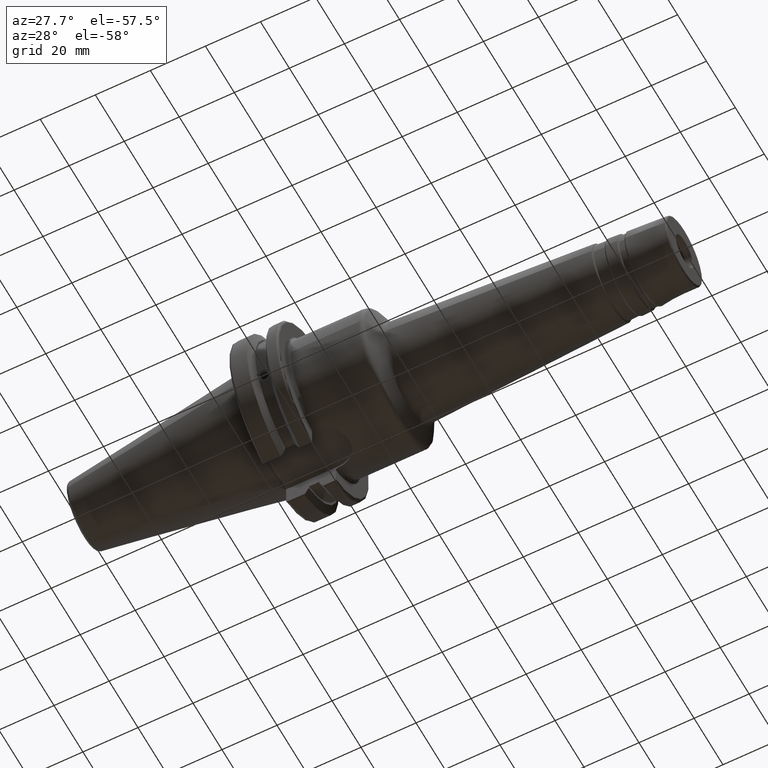
[diagram: clean part render]
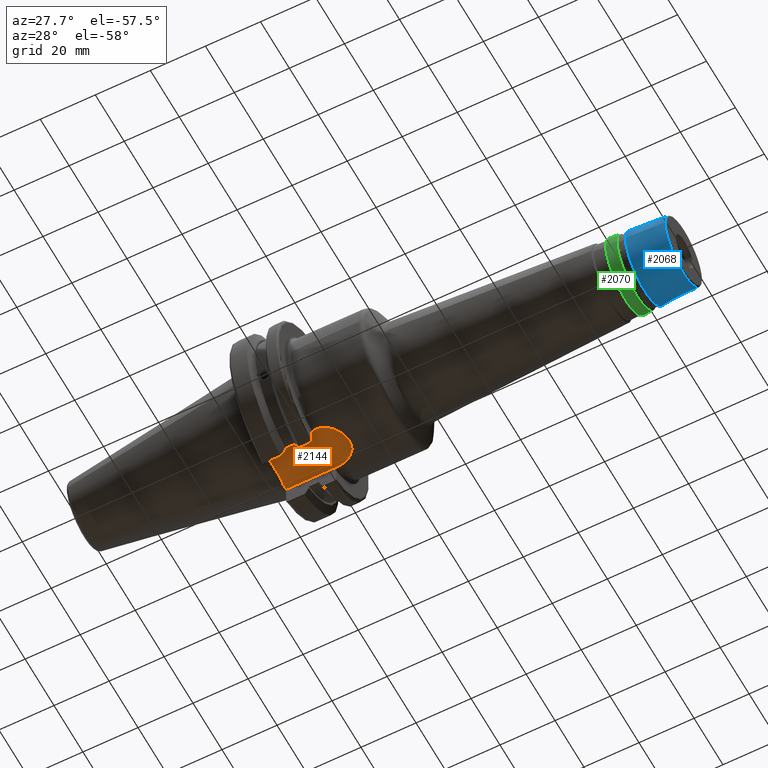
[diagram: same view with three faces highlighted in distinct colors, each labeled with its STEP entity id]
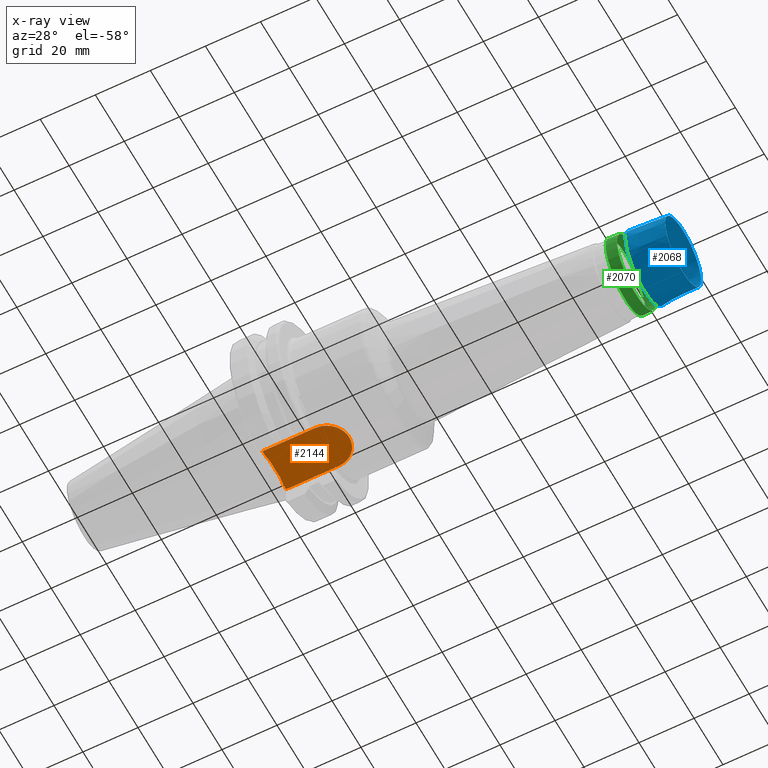
[diagram: x-ray of the same camera — body ghosted, the three highlighted faces saturated]
A machine part, auxiliary view with three faces highlighted in distinct colors.
The next image is the same camera in x-ray (body ghosted, the three faces saturated) — at least one of them is partly hidden behind the body in this view.
Their STEP definitions:

[orange] entity #2144 — the highlighted planar face has unit normal (0, 0, 1).
#31=(
BOUNDED_CURVE()
B_SPLINE_CURVE(2,(#4190,#4191,#4192),.UNSPECIFIED.,.F.,.F.)
B_SPLINE_CURVE_WITH_KNOTS((3,3),(0.,0.339841691449478),.UNSPECIFIED.)
CURVE()
GEOMETRIC_REPRESENTATION_ITEM()
RATIONAL_B_SPLINE_CURVE((1.,1.00266518417082,1.))
REPRESENTATION_ITEM('')
);
#32=(
BOUNDED_CURVE()
B_SPLINE_CURVE(2,(#4195,#4196,#4197),.UNSPECIFIED.,.F.,.F.)
B_SPLINE_CURVE_WITH_KNOTS((3,3),(0.,0.339841691449478),.UNSPECIFIED.)
CURVE()
GEOMETRIC_REPRESENTATION_ITEM()
RATIONAL_B_SPLINE_CURVE((1.,1.00266518417082,1.))
REPRESENTATION_ITEM('')
);
#159=PLANE('',#2443);
#237=LINE('',#4054,#330);
#240=LINE('',#4083,#333);
#241=LINE('',#4086,#334);
#250=LINE('',#4160,#343);
#255=LINE('',#4194,#348);
#330=VECTOR('',#2996,10.);
#333=VECTOR('',#3009,10.);
#334=VECTOR('',#3012,10.);
#343=VECTOR('',#3067,10.);
#348=VECTOR('',#3094,10.);
#463=FACE_OUTER_BOUND('',#581,.T.);
#581=EDGE_LOOP('',(#1935,#1936,#1937,#1938,#1939,#1940,#1941,#1942));
#686=CIRCLE('',#2292,8.19);
#855=VERTEX_POINT('',#3424);
#856=VERTEX_POINT('',#3426);
#978=VERTEX_POINT('',#4052);
#982=VERTEX_POINT('',#4080);
#983=VERTEX_POINT('',#4082);
#984=VERTEX_POINT('',#4084);
#1006=VERTEX_POINT('',#4189);
#1007=VERTEX_POINT('',#4193);
#1121=EDGE_CURVE('',#856,#855,#686,.T.);
#1285=EDGE_CURVE('',#855,#978,#237,.T.);
#1293=EDGE_CURVE('',#982,#983,#240,.T.);
#1295=EDGE_CURVE('',#984,#978,#241,.T.);
#1320=EDGE_CURVE('',#856,#982,#250,.T.);
#1332=EDGE_CURVE('',#1006,#984,#31,.T.);
#1333=EDGE_CURVE('',#1007,#1006,#255,.T.);
#1334=EDGE_CURVE('',#983,#1007,#32,.T.);
#1935=ORIENTED_EDGE('',*,*,#1285,.T.);
#1936=ORIENTED_EDGE('',*,*,#1295,.F.);
#1937=ORIENTED_EDGE('',*,*,#1332,.F.);
#1938=ORIENTED_EDGE('',*,*,#1333,.F.);
#1939=ORIENTED_EDGE('',*,*,#1334,.F.);
#1940=ORIENTED_EDGE('',*,*,#1293,.F.);
#1941=ORIENTED_EDGE('',*,*,#1320,.F.);
#1942=ORIENTED_EDGE('',*,*,#1121,.T.);
#2144=ADVANCED_FACE('',(#463),#159,.F.);
#2292=AXIS2_PLACEMENT_3D('',#3427,#2717,#2718);
#2443=AXIS2_PLACEMENT_3D('',#4188,#3092,#3093);
#2717=DIRECTION('center_axis',(0.,0.,-1.));
#2718=DIRECTION('ref_axis',(5.42233467460393E-16,1.,0.));
#2996=DIRECTION('',(-1.,0.,0.));
#3009=DIRECTION('',(0.,-1.,0.));
#3012=DIRECTION('',(0.,-1.,0.));
#3067=DIRECTION('',(-1.,-1.16558847729675E-16,0.));
#3092=DIRECTION('center_axis',(0.,0.,1.));
#3093=DIRECTION('ref_axis',(1.,0.,0.));
#3094=DIRECTION('',(0.,-1.,0.));
#3424=CARTESIAN_POINT('',(20.05,-8.19,-22.6));
#3426=CARTESIAN_POINT('',(20.05,8.19,-22.6));
#3427=CARTESIAN_POINT('Origin',(20.05,0.,-22.6));
#4052=CARTESIAN_POINT('',(1.,-8.19,-22.6));
#4054=CARTESIAN_POINT('',(20.05,-8.19,-22.6));
#4080=CARTESIAN_POINT('',(0.999999999999998,8.19,-22.6));
#4082=CARTESIAN_POINT('',(0.999999999999997,6.4412731660752,-22.6));
#4083=CARTESIAN_POINT('',(1.,15.875,-22.6));
#4084=CARTESIAN_POINT('',(1.,-6.44127316607517,-22.6));
#4086=CARTESIAN_POINT('',(1.,15.875,-22.6));
#4160=CARTESIAN_POINT('',(20.05,8.19,-22.6));
#4188=CARTESIAN_POINT('Origin',(14.62,-5.55111512312578E-16,-22.6));
#4189=CARTESIAN_POINT('',(1.4,-3.06715581894774,-22.6));
#4190=CARTESIAN_POINT('Ctrl Pts',(1.4,-3.06715581894779,-22.6));
#4191=CARTESIAN_POINT('Ctrl Pts',(1.27097107950098,-4.72897372977579,-22.6));
#4192=CARTESIAN_POINT('Ctrl Pts',(0.999999999999999,-6.44127316607519,-22.6));
#4193=CARTESIAN_POINT('',(1.4,3.06715581894774,-22.6));
#4194=CARTESIAN_POINT('',(1.4,11.4035898384862,-22.6));
#4195=CARTESIAN_POINT('Ctrl Pts',(0.999999999999999,6.44127316607519,-22.6));
#4196=CARTESIAN_POINT('Ctrl Pts',(1.27097107950098,4.72897372977579,-22.6));
#4197=CARTESIAN_POINT('Ctrl Pts',(1.4,3.06715581894779,-22.6));

[blue] entity #2068 — the highlighted conical surface has half-angle 3 deg.
#173=LINE('',#3282,#266);
#266=VECTOR('',#2606,12.8848185972057);
#359=CONICAL_SURFACE('',#2238,12.8848185972057,0.05235987755983);
#387=FACE_OUTER_BOUND('',#493,.T.);
#493=EDGE_LOOP('',(#1447,#1448,#1449,#1450,#1451,#1452,#1453,#1454));
#643=CIRCLE('',#2234,13.2575507230413);
#644=CIRCLE('',#2235,13.2575507230413);
#646=CIRCLE('',#2237,13.2575507230413);
#647=CIRCLE('',#2239,12.5248324840198);
#648=CIRCLE('',#2240,12.5248324840198);
#649=CIRCLE('',#2241,12.5248324840198);
#814=VERTEX_POINT('',#3269);
#815=VERTEX_POINT('',#3270);
#816=VERTEX_POINT('',#3272);
#817=VERTEX_POINT('',#3277);
#818=VERTEX_POINT('',#3278);
#819=VERTEX_POINT('',#3280);
#1065=EDGE_CURVE('',#814,#815,#643,.T.);
#1066=EDGE_CURVE('',#815,#816,#644,.T.);
#1068=EDGE_CURVE('',#816,#814,#646,.T.);
#1069=EDGE_CURVE('',#817,#818,#647,.T.);
#1070=EDGE_CURVE('',#819,#817,#648,.T.);
#1071=EDGE_CURVE('',#819,#815,#173,.T.);
#1072=EDGE_CURVE('',#818,#819,#649,.T.);
#1447=ORIENTED_EDGE('',*,*,#1069,.F.);
#1448=ORIENTED_EDGE('',*,*,#1070,.F.);
#1449=ORIENTED_EDGE('',*,*,#1071,.T.);
#1450=ORIENTED_EDGE('',*,*,#1065,.F.);
#1451=ORIENTED_EDGE('',*,*,#1068,.F.);
#1452=ORIENTED_EDGE('',*,*,#1066,.F.);
#1453=ORIENTED_EDGE('',*,*,#1071,.F.);
#1454=ORIENTED_EDGE('',*,*,#1072,.F.);
#2068=ADVANCED_FACE('',(#387),#359,.T.);
#2234=AXIS2_PLACEMENT_3D('',#3271,#2592,#2593);
#2235=AXIS2_PLACEMENT_3D('',#3273,#2594,#2595);
#2237=AXIS2_PLACEMENT_3D('',#3275,#2598,#2599);
#2238=AXIS2_PLACEMENT_3D('',#3276,#2600,#2601);
#2239=AXIS2_PLACEMENT_3D('',#3279,#2602,#2603);
#2240=AXIS2_PLACEMENT_3D('',#3281,#2604,#2605);
#2241=AXIS2_PLACEMENT_3D('',#3283,#2607,#2608);
#2592=DIRECTION('center_axis',(-1.,0.,0.));
#2593=DIRECTION('ref_axis',(0.,-1.,3.06161699786838E-17));
#2594=DIRECTION('center_axis',(-1.,0.,0.));
#2595=DIRECTION('ref_axis',(0.,-1.,3.06161699786838E-17));
#2598=DIRECTION('center_axis',(-1.,0.,0.));
#2599=DIRECTION('ref_axis',(0.,-1.,3.06161699786838E-17));
#2600=DIRECTION('center_axis',(-1.,0.,0.));
#2601=DIRECTION('ref_axis',(0.,1.,0.));
#2602=DIRECTION('center_axis',(1.,0.,0.));
#2603=DIRECTION('ref_axis',(0.,-1.,3.06161699786839E-17));
#2604=DIRECTION('center_axis',(1.,0.,0.));
#2605=DIRECTION('ref_axis',(0.,-1.,3.06161699786839E-17));
#2606=DIRECTION('',(-0.998629534754574,-0.052335956242944,-6.40930612932372E-18));
#2607=DIRECTION('center_axis',(1.,0.,0.));
#2608=DIRECTION('ref_axis',(0.,-1.,3.06161699786839E-17));
#3269=CARTESIAN_POINT('',(135.545071105762,13.2575507230413,-4.05895426437655E-15));
#3270=CARTESIAN_POINT('',(135.545071105762,-13.2575507230413,-1.62358170575062E-15));
#3271=CARTESIAN_POINT('Origin',(135.545071105762,0.,-2.02947713218828E-15));
#3272=CARTESIAN_POINT('',(135.545071105762,-1.62358170575062E-15,13.2575507230413));
#3273=CARTESIAN_POINT('Origin',(135.545071105762,0.,-2.02947713218828E-15));
#3275=CARTESIAN_POINT('Origin',(135.545071105762,0.,-2.02947713218828E-15));
#3276=CARTESIAN_POINT('Origin',(142.657223746739,0.,0.));
#3277=CARTESIAN_POINT('',(149.526167978121,12.5248324840198,-7.66924800570586E-16));
#3278=CARTESIAN_POINT('',(149.526167978121,-1.53384960114117E-15,12.5248324840198));
#3279=CARTESIAN_POINT('Origin',(149.526167978121,0.,-1.91731200142646E-15));
#3280=CARTESIAN_POINT('',(149.526167978121,-12.5248324840198,-1.53384960114117E-15));
#3281=CARTESIAN_POINT('Origin',(149.526167978121,0.,-1.91731200142646E-15));
#3282=CARTESIAN_POINT('',(142.657223746739,-12.8848185972057,-1.57793518526622E-15));
#3283=CARTESIAN_POINT('Origin',(149.526167978121,0.,-1.91731200142646E-15));

[green] entity #2070 — the highlighted conical surface has half-angle 3 deg.
#174=LINE('',#3294,#267);
#267=VECTOR('',#2621,13.5202570867172);
#360=CONICAL_SURFACE('',#2247,13.5202570867172,0.0523598775598298);
#389=FACE_OUTER_BOUND('',#495,.T.);
#495=EDGE_LOOP('',(#1463,#1464,#1465,#1466,#1467,#1468,#1469,#1470));
#651=CIRCLE('',#2244,13.4166117566925);
#652=CIRCLE('',#2245,13.4166117566925);
#653=CIRCLE('',#2246,13.4166117566925);
#654=CIRCLE('',#2248,13.6239024167419);
#655=CIRCLE('',#2249,13.6239024167419);
#656=CIRCLE('',#2250,13.6239024167419);
#820=VERTEX_POINT('',#3285);
#821=VERTEX_POINT('',#3287);
#822=VERTEX_POINT('',#3289);
#823=VERTEX_POINT('',#3293);
#824=VERTEX_POINT('',#3295);
#825=VERTEX_POINT('',#3297);
#1074=EDGE_CURVE('',#820,#821,#651,.T.);
#1075=EDGE_CURVE('',#821,#822,#652,.T.);
#1076=EDGE_CURVE('',#822,#820,#653,.T.);
#1077=EDGE_CURVE('',#821,#823,#174,.T.);
#1078=EDGE_CURVE('',#824,#823,#654,.T.);
#1079=EDGE_CURVE('',#825,#824,#655,.T.);
#1080=EDGE_CURVE('',#823,#825,#656,.T.);
#1463=ORIENTED_EDGE('',*,*,#1076,.F.);
#1464=ORIENTED_EDGE('',*,*,#1075,.F.);
#1465=ORIENTED_EDGE('',*,*,#1077,.T.);
#1466=ORIENTED_EDGE('',*,*,#1078,.F.);
#1467=ORIENTED_EDGE('',*,*,#1079,.F.);
#1468=ORIENTED_EDGE('',*,*,#1080,.F.);
#1469=ORIENTED_EDGE('',*,*,#1077,.F.);
#1470=ORIENTED_EDGE('',*,*,#1074,.F.);
#2070=ADVANCED_FACE('',(#389),#360,.T.);
#2244=AXIS2_PLACEMENT_3D('',#3288,#2613,#2614);
#2245=AXIS2_PLACEMENT_3D('',#3290,#2615,#2616);
#2246=AXIS2_PLACEMENT_3D('',#3291,#2617,#2618);
#2247=AXIS2_PLACEMENT_3D('',#3292,#2619,#2620);
#2248=AXIS2_PLACEMENT_3D('',#3296,#2622,#2623);
#2249=AXIS2_PLACEMENT_3D('',#3298,#2624,#2625);
#2250=AXIS2_PLACEMENT_3D('',#3299,#2626,#2627);
#2613=DIRECTION('center_axis',(1.,0.,0.));
#2614=DIRECTION('ref_axis',(0.,-1.,3.06161699786838E-17));
#2615=DIRECTION('center_axis',(1.,0.,0.));
#2616=DIRECTION('ref_axis',(0.,-1.,3.06161699786838E-17));
#2617=DIRECTION('center_axis',(1.,0.,0.));
#2618=DIRECTION('ref_axis',(0.,-1.,3.06161699786838E-17));
#2619=DIRECTION('center_axis',(-1.,0.,0.));
#2620=DIRECTION('ref_axis',(0.,1.,0.));
#2621=DIRECTION('',(-0.998629534754574,-0.0523359562429437,-6.4093061293237E-18));
#2622=DIRECTION('center_axis',(-1.,0.,0.));
#2623=DIRECTION('ref_axis',(0.,-1.,3.06161699786838E-17));
#2624=DIRECTION('center_axis',(-1.,0.,0.));
#2625=DIRECTION('ref_axis',(0.,-1.,3.06161699786838E-17));
#2626=DIRECTION('center_axis',(-1.,0.,0.));
#2627=DIRECTION('ref_axis',(0.,-1.,3.06161699786838E-17));
#3285=CARTESIAN_POINT('',(132.510005780972,-1.64306106432362E-15,13.4166117566925));
#3287=CARTESIAN_POINT('',(132.510005780972,-13.4166117566925,-1.64306106432362E-15));
#3288=CARTESIAN_POINT('Origin',(132.510005780972,0.,-2.05382633040452E-15));
#3289=CARTESIAN_POINT('',(132.510005780972,13.4166117566925,-8.2153053216181E-16));
#3290=CARTESIAN_POINT('Origin',(132.510005780972,0.,-2.05382633040452E-15));
#3291=CARTESIAN_POINT('Origin',(132.510005780972,0.,-2.05382633040452E-15));
#3292=CARTESIAN_POINT('Origin',(130.532335071726,0.,0.));
#3293=CARTESIAN_POINT('',(128.55466436248,-13.6239024167419,-1.66844684865589E-15));
#3294=CARTESIAN_POINT('',(130.532335071726,-13.5202570867172,-1.65575395648975E-15));
#3295=CARTESIAN_POINT('',(128.55466436248,13.6239024167419,-4.17111712163972E-15));
#3296=CARTESIAN_POINT('Origin',(128.55466436248,0.,-2.08555856081986E-15));
#3297=CARTESIAN_POINT('',(128.55466436248,-1.66844684865589E-15,13.6239024167419));
#3298=CARTESIAN_POINT('Origin',(128.55466436248,0.,-2.08555856081986E-15));
#3299=CARTESIAN_POINT('Origin',(128.55466436248,0.,-2.08555856081986E-15));